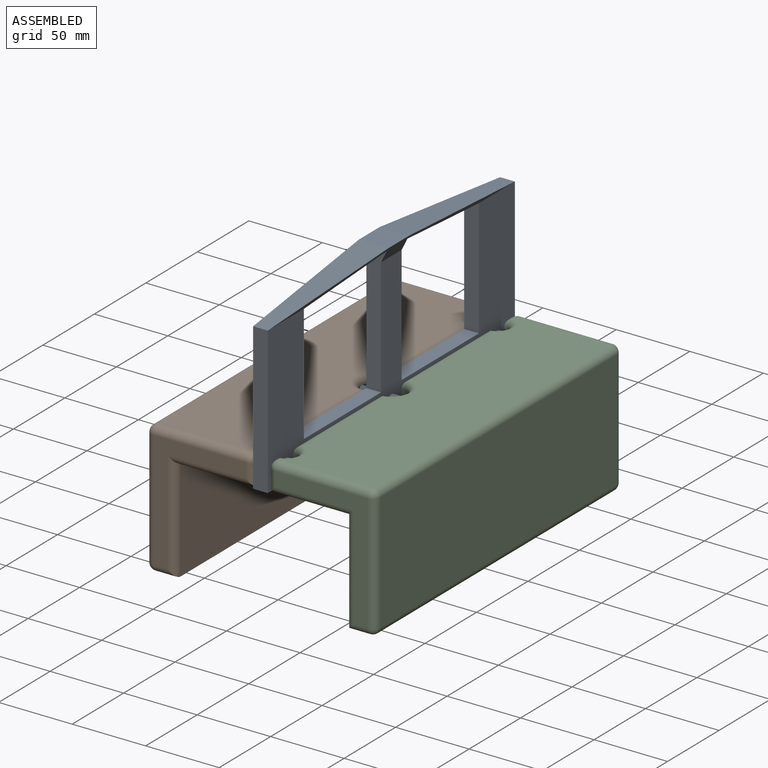
[diagram: assembled view]
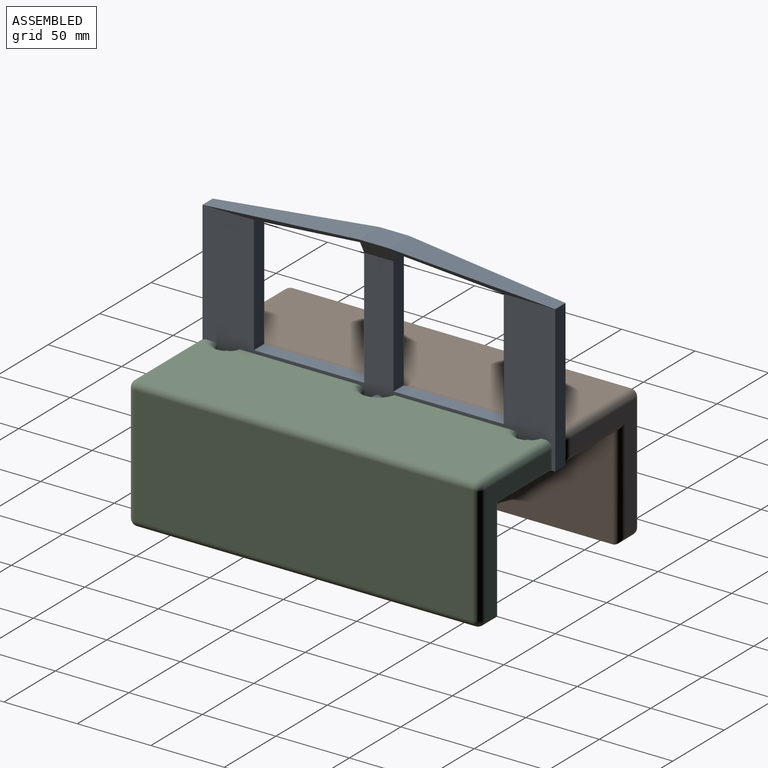
[diagram: assembled view, second angle]
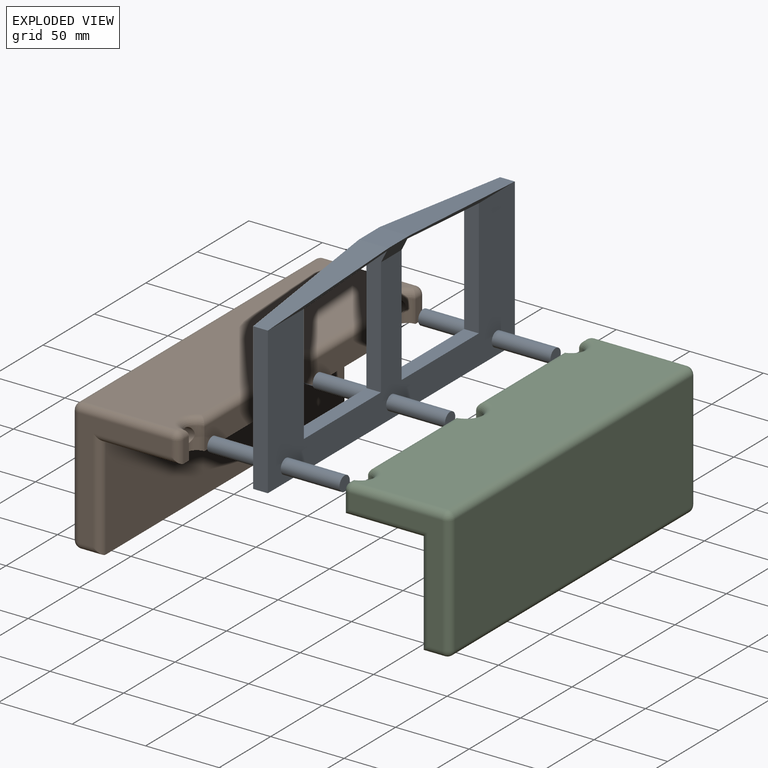
[diagram: exploded view]
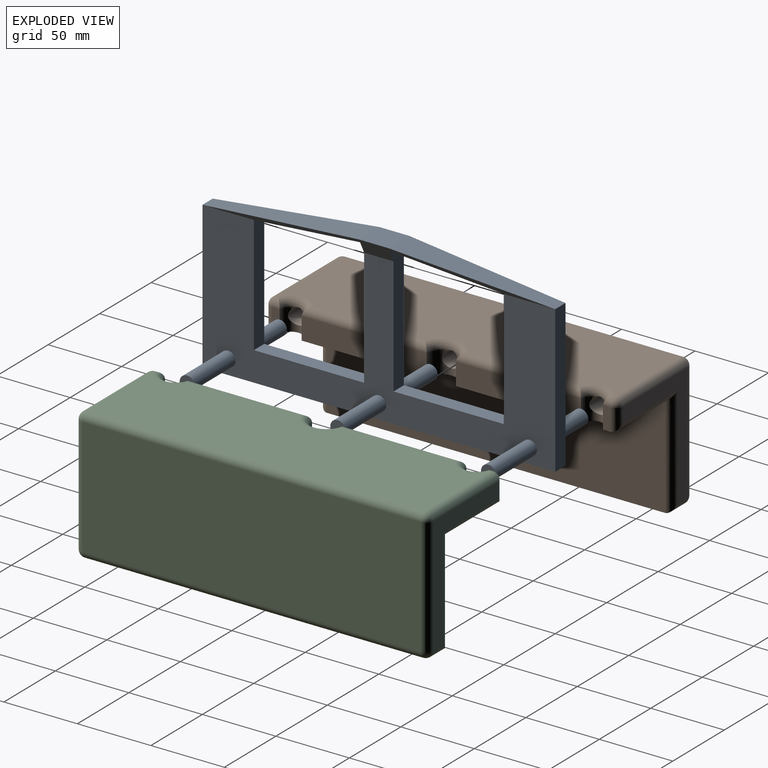
[diagram: exploded view, second angle]
ASSEMBLY  parts=3 mates=2
PART A: 30 faces, bbox 90x240x110 mm
  f0: plane 75x10mm, normal (0,0,1), area 750mm2, adj f11,f12,f20,f22
  f1: cylinder r=5mm len=40mm, axis (1,0,0), area 1256.6mm2, adj f2,f12
  f2: plane 10x10mm, normal (-1,0,0), area 78.5mm2, adj f1
  f3: cylinder r=5mm len=40mm, axis (1,0,0), area 1256.6mm2, adj f4,f12
  f4: plane 10x10mm, normal (-1,0,0), area 78.5mm2, adj f3
  f5: cylinder r=5mm len=40mm, axis (1,0,0), area 1256.6mm2, adj f6,f12
  f6: plane 10x10mm, normal (-1,0,0), area 78.5mm2, adj f5
  f7: plane 75x10mm, normal (0,0,1), area 750mm2, adj f11,f12,f19,f21
  f8: plane 100x10mm, normal (0,-1,0), area 1000mm2, adj f9,f11,f12,f28
  f9: plane 240x10mm, normal (0,0,-1), area 2400mm2, adj f8,f10,f11,f12
  f10: plane 100x10mm, normal (0,1,0), area 1000mm2, adj f9,f11,f12,f27
  f11: plane 240x100mm, normal (1,0,0), area 11764.4mm2, adj f0,f7,f8,f9,f10,f13,f15,f17
  f12: plane 240x100mm, normal (-1,0,0), area 11764.4mm2, adj f0,f1,f3,f5,f7,f8,f9,f10
  f13: cylinder r=5mm len=40mm, axis (-1,0,0), area 1256.6mm2, adj f11,f14
  f14: plane 10x10mm, normal (1,0,0), area 78.5mm2, adj f13
  f15: cylinder r=5mm len=40mm, axis (-1,0,0), area 1256.6mm2, adj f11,f16
  f16: plane 10x10mm, normal (1,0,0), area 78.5mm2, adj f15
  f17: cylinder r=5mm len=40mm, axis (-1,0,0), area 1256.6mm2, adj f11,f18
  f18: plane 10x10mm, normal (1,0,0), area 78.5mm2, adj f17
  f19: plane 80x10mm, normal (0,-1,0), area 800mm2, adj f7,f11,f12,f25
  f20: plane 80x10mm, normal (0,1,0), area 800mm2, adj f0,f11,f12,f29
  f21: plane 87.89x17.89mm, normal (0,1,0), area 910.1mm2, adj f7,f11,f12,f24,f25,f26
  f22: plane 87.89x17.89mm, normal (0,-1,0), area 910.1mm2, adj f0,f11,f12,f24,f26,f29
  f23: plane 20x20mm, normal (0,0,1), area 400mm2, adj f24,f26,f27,f28
  f24: plane 240x10mm, normal (-0.89,0,-0.45), area 791.5mm2, adj f12,f21,f22,f23,f25,f27,f28,f29
  f25: plane 75x17.89mm, normal (0,-0.1,-0.99), area 1051.8mm2, adj f19,f21,f24,f26
  f26: plane 240x10mm, normal (0.89,0,-0.45), area 791.5mm2, adj f11,f21,f22,f23,f25,f27,f28,f29
  f27: plane 110x20mm, normal (0,0.09,1), area 1656.8mm2, adj f10,f23,f24,f26
  f28: plane 110x20mm, normal (0,-0.09,1), area 1656.8mm2, adj f8,f23,f24,f26
  f29: plane 75x17.89mm, normal (0,0.1,-0.99), area 1051.8mm2, adj f20,f22,f24,f26
PART B: 47 faces, bbox 73x240x90 mm
  f0: cylinder r=7.5mm len=15mm, axis (0,0,1), area 251.7mm2, adj f4,f5,f7,f19,f44
  f1: cylinder r=10mm len=20mm, axis (0,0,1), area 373.6mm2, adj f3,f4,f7,f16,f38
  f2: cylinder r=7.5mm len=15mm, axis (0,0,1), area 251.7mm2, adj f3,f7,f8,f14,f30
  f3: plane 85x15mm, normal (1,0,0), area 1275mm2, adj f1,f2,f7,f34
  f4: plane 85x15mm, normal (1,0,0), area 1275mm2, adj f0,f1,f7,f41
  f5: plane 15x5mm, normal (1,0,0), area 75mm2, adj f0,f7,f42,f46
  f6: plane 230x63mm, normal (0,0,1), area 14036mm2, adj f26,f29,f30,f34,f37,f38,f41,f43
  f7: plane 230x53mm, normal (0,0,-1), area 11856.2mm2, adj f0,f1,f2,f3,f4,f5,f8,f12
  f8: plane 15x5mm, normal (1,0,0), area 75mm2, adj f2,f7,f23,f26
  f9: plane 80x63mm, normal (0,1,0), area 1330mm2, adj f20,f21,f22,f23,f28,f29
  f10: plane 230x80mm, normal (-1,0,0), area 18400mm2, adj f27,f28,f36,f37
  f11: plane 80x63mm, normal (0,-1,0), area 1330mm2, adj f31,f35,f36,f39,f42,f43
  f12: plane 230x70mm, normal (1,0,0), area 16100mm2, adj f7,f13,f20,f35
  f13: plane 230x15mm, normal (0,0,-1), area 3450mm2, adj f12,f22,f27,f31
  f14: cylinder r=5.5mm len=34.9mm, axis (1,0,0), area 1162.6mm2, adj f2,f15,f30
  f15: cone r=0mm half-angle=59deg, axis (1,0,0), area 110.9mm2, adj f14
  f16: cylinder r=5.5mm len=31.65mm, axis (1,0,0), area 1064.5mm2, adj f1,f17,f38
  f17: cone r=0mm half-angle=59deg, axis (1,0,0), area 110.9mm2, adj f16
  f18: cone r=0mm half-angle=59deg, axis (1,0,0), area 110.9mm2, adj f19
  f19: cylinder r=5.5mm len=34.9mm, axis (1,0,0), area 1162.6mm2, adj f0,f18,f44
  f20: cylinder r=5mm len=75mm, axis (0,0,-1), area 549.8mm2, adj f9,f12,f21,f22
  f21: cylinder r=5mm len=58mm, axis (-1,0,0), area 416.3mm2, adj f7,f9,f20,f23
  f22: cylinder r=5mm len=15mm, axis (1,0,0), area 103.5mm2, adj f9,f13,f20,f24
  f23: cylinder r=5mm len=15mm, axis (0,0,1), area 103.5mm2, adj f8,f9,f21,f25
  f24: sphere r=5mm, area 39.3mm2, adj f22,f27,f28
  f25: sphere r=5mm, area 39.3mm2, adj f23,f26,f29
  f26: cylinder r=5mm len=5mm, axis (0,-1,0), area 27.1mm2, adj f6,f8,f25,f30
  f27: cylinder r=5mm len=230mm, axis (0,1,0), area 1806.4mm2, adj f10,f13,f24,f32
  f28: cylinder r=5mm len=80mm, axis (0,0,-1), area 628.3mm2, adj f9,f10,f24,f33
  f29: cylinder r=5mm len=63mm, axis (1,0,0), area 494.8mm2, adj f6,f9,f25,f33
  f30: torus R=12.5mm, axis (0,0,1), area 199.3mm2, adj f2,f6,f14,f26,f34
  f31: cylinder r=5mm len=15mm, axis (-1,0,0), area 103.5mm2, adj f11,f13,f32,f35
  f32: sphere r=5mm, area 39.3mm2, adj f27,f31,f36
  f33: sphere r=5mm, area 39.3mm2, adj f28,f29,f37
  f34: cylinder r=5mm len=85mm, axis (0,-1,0), area 642.8mm2, adj f3,f6,f30,f38
  f35: cylinder r=5mm len=75mm, axis (0,0,1), area 549.8mm2, adj f11,f12,f31,f39
  f36: cylinder r=5mm len=80mm, axis (0,0,1), area 628.3mm2, adj f10,f11,f32,f40
  f37: cylinder r=5mm len=230mm, axis (0,1,0), area 1806.4mm2, adj f6,f10,f33,f40
  f38: torus R=15mm, axis (0,0,1), area 261.2mm2, adj f1,f6,f16,f34,f41
  f39: cylinder r=5mm len=58mm, axis (1,0,0), area 416.3mm2, adj f7,f11,f35,f42
  f40: sphere r=5mm, area 39.3mm2, adj f36,f37,f43
  f41: cylinder r=5mm len=85mm, axis (0,-1,0), area 642.8mm2, adj f4,f6,f38,f44
  f42: cylinder r=5mm len=15mm, axis (0,0,-1), area 103.5mm2, adj f5,f11,f39,f45
  f43: cylinder r=5mm len=63mm, axis (-1,0,0), area 494.8mm2, adj f6,f11,f40,f45
  f44: torus R=12.5mm, axis (0,0,1), area 199.3mm2, adj f0,f6,f19,f41,f46
  f45: sphere r=5mm, area 39.3mm2, adj f42,f43,f46
  f46: cylinder r=5mm len=5mm, axis (0,-1,0), area 27.1mm2, adj f5,f6,f44,f45
PART C: same geometry as B
PLACE A t=(10.59,0,-16.94)mm
PLACE B t=(10.59,0,-16.94)mm
PLACE C rot(axis=(0,0,1),180deg) t=(93.59,0,-16.94)mm
MATE slider B.f18 <-> A.f1  axis (1,0,0) through (7.09,-102.5,-6.94)mm
MATE slider C.f16 <-> A.f3  axis (-1,0,0) through (97.09,0,-6.94)mm
